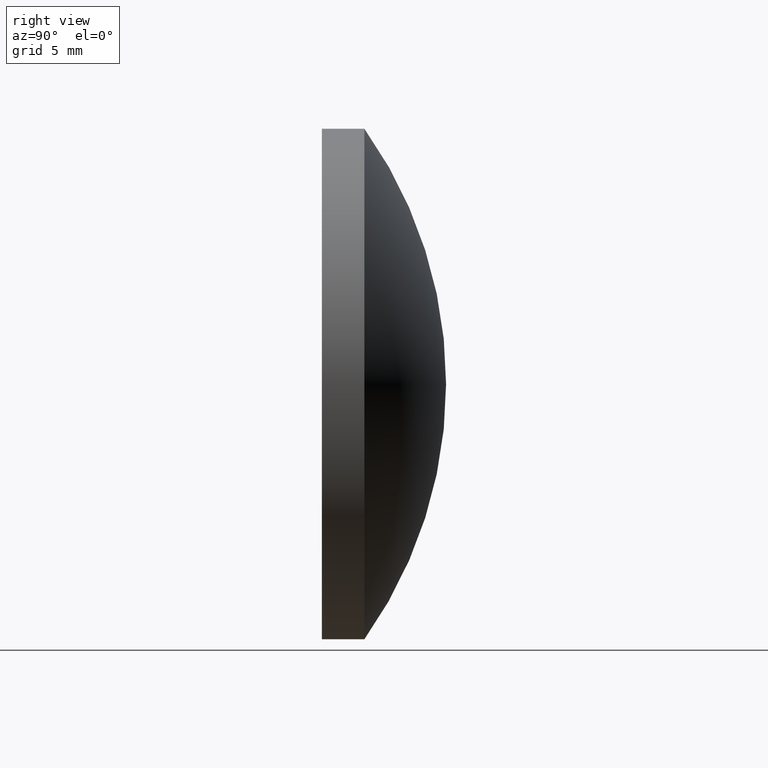
[diagram: clean part render]
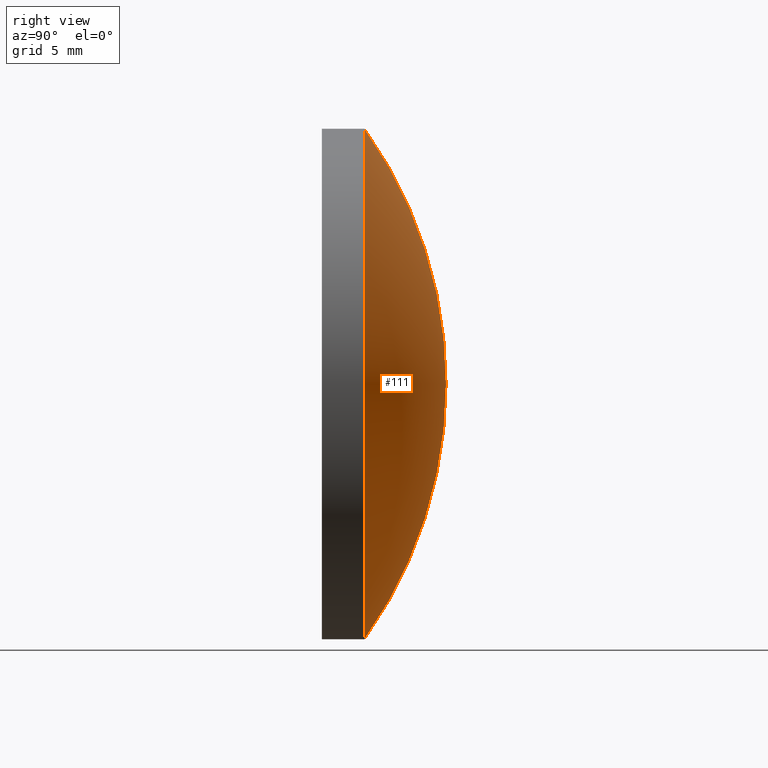
[diagram: same view with one face highlighted and labeled with its STEP entity id]
A machine part, right view. The second image highlights one B-rep face of the part: STEP entity #111.
In plain terms, the highlighted toroidal blend (fillet) surface has major radius 0.0008 mm and minor (blend) radius 25.84 mm.
Its self-contained STEP definition (entity closure, byte-faithful):
#3 = DIRECTION ( 'NONE',  ( 1.000000000000000000, 0.000000000000000000, 1.224646799147353207E-16 ) ) ;
#5 = CARTESIAN_POINT ( 'NONE',  ( 0.000000000000000000, 2.499999999999998224, 15.00000000000000178 ) ) ;
#16 = CARTESIAN_POINT ( 'NONE',  ( -9.797125862820881380E-20, -18.53999998761622692, 0.0007999960371955425198 ) ) ;
#23 = DIRECTION ( 'NONE',  ( 0.000000000000000000, 0.000000000000000000, 1.000000000000000000 ) ) ;
#25 = CARTESIAN_POINT ( 'NONE',  ( 0.000000000000000000, -18.53999998761622692, -0.0007999960371955425198 ) ) ;
#34 = AXIS2_PLACEMENT_3D ( 'NONE', #16, #3, #65 ) ;
#42 = AXIS2_PLACEMENT_3D ( 'NONE', #79, #145, #99 ) ;
#45 = VERTEX_POINT ( 'NONE', #197 ) ;
#60 = CIRCLE ( 'NONE', #142, 25.84000000000000696 ) ;
#65 = DIRECTION ( 'NONE',  ( 1.224646799147353207E-16, 0.000000000000000000, -1.000000000000000000 ) ) ;
#69 = CARTESIAN_POINT ( 'NONE',  ( 0.000000000000000000, -18.53999998761622692, 0.000000000000000000 ) ) ;
#73 = ORIENTED_EDGE ( 'NONE', *, *, #143, .T. ) ;
#79 = CARTESIAN_POINT ( 'NONE',  ( 0.000000000000000000, 2.499999999999997780, 0.000000000000000000 ) ) ;
#90 = CIRCLE ( 'NONE', #34, 25.84000000000000696 ) ;
#99 = DIRECTION ( 'NONE',  ( 0.000000000000000000, 0.000000000000000000, 1.000000000000000000 ) ) ;
#111 = ADVANCED_FACE ( 'NONE', ( #185 ), #190, .T. ) ;
#115 = ORIENTED_EDGE ( 'NONE', *, *, #132, .T. ) ;
#116 = AXIS2_PLACEMENT_3D ( 'NONE', #69, #121, #173 ) ;
#121 = DIRECTION ( 'NONE',  ( -0.000000000000000000, 1.000000000000000000, -0.000000000000000000 ) ) ;
#132 = EDGE_CURVE ( 'NONE', #167, #45, #138, .T. ) ;
#135 = DIRECTION ( 'NONE',  ( -1.000000000000000000, 0.000000000000000000, 0.000000000000000000 ) ) ;
#138 = CIRCLE ( 'NONE', #42, 15.00000000000000000 ) ;
#142 = AXIS2_PLACEMENT_3D ( 'NONE', #25, #135, #23 ) ;
#143 = EDGE_CURVE ( 'NONE', #45, #192, #90, .T. ) ;
#145 = DIRECTION ( 'NONE',  ( -0.000000000000000000, 1.000000000000000000, -0.000000000000000000 ) ) ;
#149 = ORIENTED_EDGE ( 'NONE', *, *, #199, .F. ) ;
#167 = VERTEX_POINT ( 'NONE', #5 ) ;
#173 = DIRECTION ( 'NONE',  ( 0.000000000000000000, 0.000000000000000000, 1.000000000000000000 ) ) ;
#185 = FACE_OUTER_BOUND ( 'NONE', #188, .T. ) ;
#188 = EDGE_LOOP ( 'NONE', ( #115, #73, #149 ) ) ;
#190 = TOROIDAL_SURFACE ( 'NONE', #116, -0.0007999960371955425198, 25.84000000000000696 ) ;
#192 = VERTEX_POINT ( 'NONE', #198 ) ;
#197 = CARTESIAN_POINT ( 'NONE',  ( 1.836970198721029589E-15, 2.499999999999998224, -15.00000000000000178 ) ) ;
#198 = CARTESIAN_POINT ( 'NONE',  ( 0.000000000000000000, 7.299999999999999822, 0.000000000000000000 ) ) ;
#199 = EDGE_CURVE ( 'NONE', #167, #192, #60, .T. ) ;